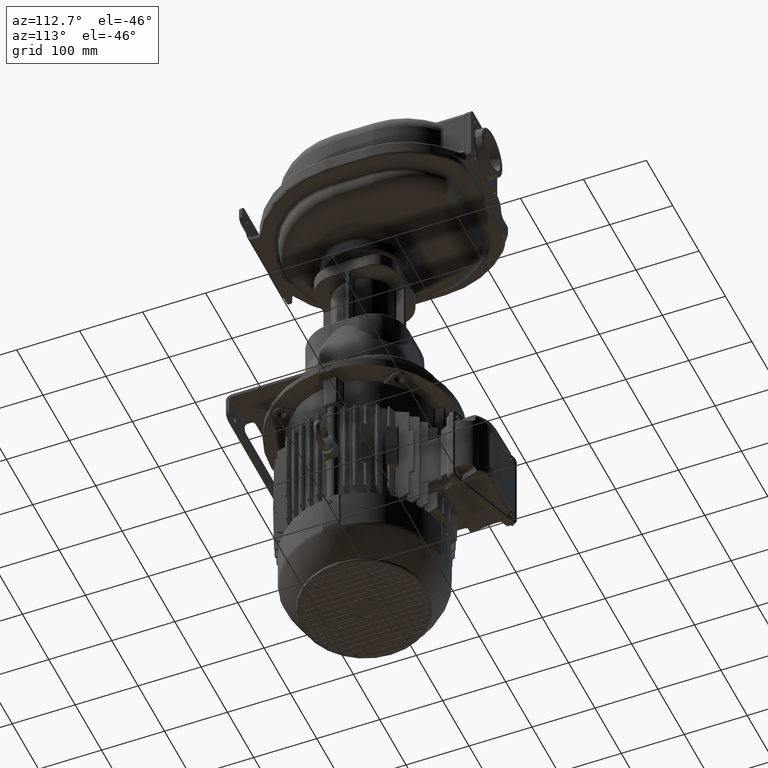
[diagram: clean part render]
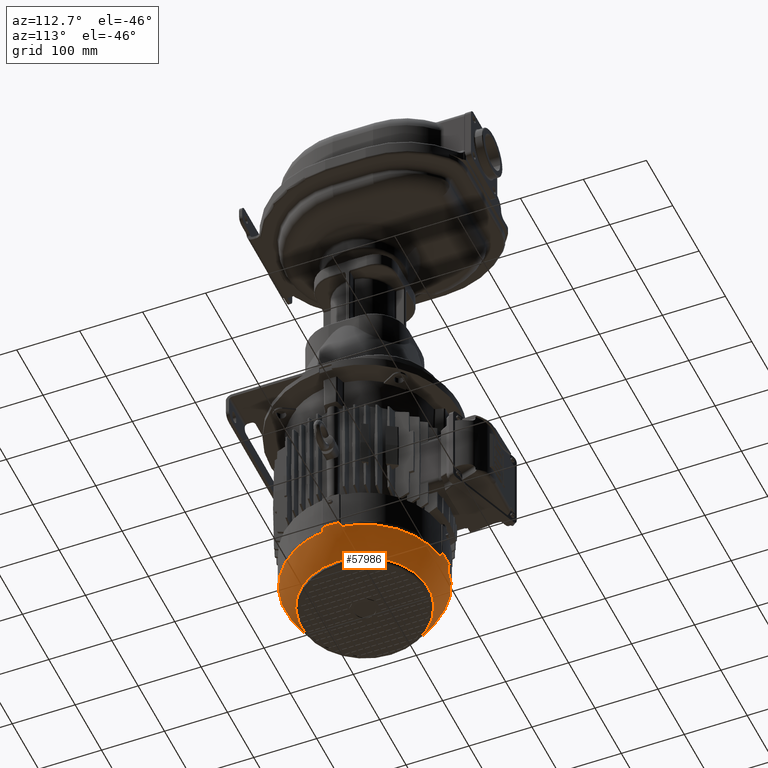
[diagram: same view with one face highlighted and labeled with its STEP entity id]
A machine part, auxiliary view. The second image highlights one B-rep face of the part: STEP entity #57986.
In plain terms, the highlighted spherical surface has radius 134.5 mm.
Its self-contained STEP definition (entity closure, byte-faithful):
#8047=CARTESIAN_POINT('',(-1.282834132325E2,1.468267666692E2,
-7.524111169065E2));
#8048=CARTESIAN_POINT('',(-1.282002467554E2,1.468032779781E2,
-7.526822287057E2));
#8049=CARTESIAN_POINT('',(-1.281156932223E2,1.467736879886E2,
-7.529527179535E2));
#8050=CARTESIAN_POINT('',(-1.280296044654E2,1.467363660330E2,
-7.532224832490E2));
#8062=CARTESIAN_POINT('',(-1.280296044654E2,1.467363660330E2,
-7.532224832490E2));
#8064=CARTESIAN_POINT('',(1.488929890107E1,3.430784874219E1,-7.596978132399E2));
#8065=CARTESIAN_POINT('',(1.475796735169E1,3.414367218423E1,-7.592872372190E2));
#8066=CARTESIAN_POINT('',(1.451428960194E1,3.383795419351E1,-7.585083626276E2));
#8067=CARTESIAN_POINT('',(1.420753603204E1,3.344590093285E1,-7.574764143306E2));
#8068=CARTESIAN_POINT('',(1.395433302649E1,3.310838468514E1,-7.565597509912E2));
#8069=CARTESIAN_POINT('',(1.374995806908E1,3.282021040087E1,-7.557538500398E2));
#8070=CARTESIAN_POINT('',(1.358630177904E1,3.257162973163E1,-7.550394341202E2));
#8071=CARTESIAN_POINT('',(1.345382030648E1,3.235117006413E1,-7.543892773766E2));
#8072=CARTESIAN_POINT('',(1.334645929561E1,3.215149202508E1,-7.537855855491E2));
#8073=CARTESIAN_POINT('',(1.328900445610E1,3.202891642737E1,-7.534058626654E2));
#8074=CARTESIAN_POINT('',(1.326363396699E1,3.197039553464E1,-7.532224832490E2));
#8076=CARTESIAN_POINT('',(-2.912393634391E-14,1.6E2,-7.596978132152E2));
#8077=DIRECTION('',(0.E0,0.E0,-1.E0));
#8078=DIRECTION('',(9.930567840818E-1,-1.176359791440E-1,0.E0));
#8079=AXIS2_PLACEMENT_3D('',#8076,#8077,#8078);
#8081=CARTESIAN_POINT('',(1.280296044654E2,1.467363660330E2,-7.532224832490E2));
#8082=CARTESIAN_POINT('',(1.279813187382E2,1.467154327826E2,-7.533737900399E2));
#8083=CARTESIAN_POINT('',(1.278801106687E2,1.466686185051E2,-7.536879521160E2));
#8084=CARTESIAN_POINT('',(1.277151915065E2,1.465827020448E2,-7.541895862922E2));
#8085=CARTESIAN_POINT('',(1.275327514921E2,1.464775507930E2,-7.547329884133E2));
#8086=CARTESIAN_POINT('',(1.273269676717E2,1.463481361164E2,-7.553325302622E2));
#8087=CARTESIAN_POINT('',(1.270895303860E2,1.461871273412E2,-7.560081109741E2));
#8088=CARTESIAN_POINT('',(1.268139615596E2,1.459881912629E2,-7.567724172240E2));
#8089=CARTESIAN_POINT('',(1.264955735249E2,1.457470905978E2,-7.576317792437E2));
#8090=CARTESIAN_POINT('',(1.261281700094E2,1.454586700014E2,-7.585951109436E2));
#8091=CARTESIAN_POINT('',(1.258441489627E2,1.452322768213E2,-7.593176899323E2));
#8092=CARTESIAN_POINT('',(1.256921512578E2,1.451107010989E2,-7.596978132399E2));
#8094=CARTESIAN_POINT('',(-2.823160288411E-14,1.6E2,-7.524111169065E2));
#8095=DIRECTION('',(0.E0,0.E0,-1.E0));
#8096=DIRECTION('',(9.947688696105E-1,1.021513389720E-1,0.E0));
#8097=AXIS2_PLACEMENT_3D('',#8094,#8095,#8096);
#8099=CARTESIAN_POINT('',(1.256921512578E2,1.748892989011E2,-7.596978132399E2));
#8100=CARTESIAN_POINT('',(1.258441489608E2,1.747677231801E2,-7.593176899370E2));
#8101=CARTESIAN_POINT('',(1.261281700108E2,1.745413299976E2,-7.585951109395E2));
#8102=CARTESIAN_POINT('',(1.264955735112E2,1.742529094125E2,-7.576317792810E2));
#8103=CARTESIAN_POINT('',(1.268139616318E2,1.740118086822E2,-7.567724170290E2));
#8104=CARTESIAN_POINT('',(1.270895305736E2,1.738128725246E2,-7.560081104511E2));
#8105=CARTESIAN_POINT('',(1.273269679927E2,1.736518636723E2,-7.553325293393E2));
#8106=CARTESIAN_POINT('',(1.275327517427E2,1.735224490569E2,-7.547329876729E2));
#8107=CARTESIAN_POINT('',(1.277151916597E2,1.734172978721E2,-7.541895858293E2));
#8108=CARTESIAN_POINT('',(1.278801107320E2,1.733313814633E2,-7.536879519209E2));
#8109=CARTESIAN_POINT('',(1.279813187573E2,1.732845672093E2,-7.533737899799E2));
#8110=CARTESIAN_POINT('',(1.280296044654E2,1.732636339670E2,-7.532224832490E2));
#8112=CARTESIAN_POINT('',(-2.912393634391E-14,1.6E2,-7.596978132152E2));
#8113=DIRECTION('',(0.E0,0.E0,-1.E0));
#8114=DIRECTION('',(1.176359791440E-1,9.930567840818E-1,0.E0));
#8115=AXIS2_PLACEMENT_3D('',#8112,#8113,#8114);
#8117=CARTESIAN_POINT('',(1.326363396699E1,2.880296044654E2,-7.532224832490E2));
#8118=CARTESIAN_POINT('',(1.328900445110E1,2.879710835835E2,-7.534058626313E2));
#8119=CARTESIAN_POINT('',(1.334645927764E1,2.878485080152E2,-7.537855854249E2));
#8120=CARTESIAN_POINT('',(1.345382027074E1,2.876488300020E2,-7.543892771771E2));
#8121=CARTESIAN_POINT('',(1.358630165557E1,2.874283704681E2,-7.550394335357E2));
#8122=CARTESIAN_POINT('',(1.374995789374E1,2.871797898532E2,-7.557538493214E2));
#8123=CARTESIAN_POINT('',(1.395433292233E1,2.868916154548E2,-7.565597506087E2));
#8124=CARTESIAN_POINT('',(1.420753600259E1,2.865540991033E2,-7.574764142382E2));
#8125=CARTESIAN_POINT('',(1.451428969286E1,2.861620456923E2,-7.585083629244E2));
#8126=CARTESIAN_POINT('',(1.475796739454E1,2.858563277598E2,-7.592872373595E2));
#8127=CARTESIAN_POINT('',(1.488929890107E1,2.856921512578E2,-7.596978132399E2));
#8129=CARTESIAN_POINT('',(-2.823160288411E-14,1.6E2,-7.524111169065E2));
#8130=DIRECTION('',(0.E0,0.E0,1.E0));
#8131=DIRECTION('',(1.021513389720E-1,9.947688696105E-1,0.E0));
#8132=AXIS2_PLACEMENT_3D('',#8129,#8130,#8131);
#8134=CARTESIAN_POINT('',(-1.488929890107E1,2.856921512578E2,
-7.596978132399E2));
#8135=CARTESIAN_POINT('',(-1.475796735151E1,2.858563278159E2,
-7.592872372187E2));
#8136=CARTESIAN_POINT('',(-1.451428960151E1,2.861620458068E2,
-7.585083626270E2));
#8137=CARTESIAN_POINT('',(-1.420753603168E1,2.865540990675E2,
-7.574764143297E2));
#8138=CARTESIAN_POINT('',(-1.395433302624E1,2.868916153152E2,
-7.565597509902E2));
#8139=CARTESIAN_POINT('',(-1.374995806884E1,2.871797895995E2,
-7.557538500386E2));
#8140=CARTESIAN_POINT('',(-1.358630177878E1,2.874283702688E2,
-7.550394341188E2));
#8141=CARTESIAN_POINT('',(-1.345382030629E1,2.876488299362E2,
-7.543892773755E2));
#8142=CARTESIAN_POINT('',(-1.334645929552E1,2.878485079751E2,
-7.537855855485E2));
#8143=CARTESIAN_POINT('',(-1.328900445607E1,2.879710835727E2,
-7.534058626652E2));
#8144=CARTESIAN_POINT('',(-1.326363396699E1,2.880296044654E2,
-7.532224832490E2));
#8146=CARTESIAN_POINT('',(-2.912393634391E-14,1.6E2,-7.596978132152E2));
#8147=DIRECTION('',(0.E0,0.E0,-1.E0));
#8148=DIRECTION('',(-9.930567840818E-1,1.176359791440E-1,0.E0));
#8149=AXIS2_PLACEMENT_3D('',#8146,#8147,#8148);
#8151=CARTESIAN_POINT('',(-1.280296044654E2,1.732636339670E2,
-7.532224832490E2));
#8152=CARTESIAN_POINT('',(-1.279813187382E2,1.732845672174E2,
-7.533737900398E2));
#8153=CARTESIAN_POINT('',(-1.278801106687E2,1.733313814949E2,
-7.536879521160E2));
#8154=CARTESIAN_POINT('',(-1.277151915065E2,1.734172979552E2,
-7.541895862922E2));
#8155=CARTESIAN_POINT('',(-1.275327514921E2,1.735224492070E2,
-7.547329884133E2));
#8156=CARTESIAN_POINT('',(-1.273269676717E2,1.736518638836E2,
-7.553325302622E2));
#8157=CARTESIAN_POINT('',(-1.270895303860E2,1.738128726588E2,
-7.560081109740E2));
#8158=CARTESIAN_POINT('',(-1.268139615596E2,1.740118087371E2,
-7.567724172240E2));
#8159=CARTESIAN_POINT('',(-1.264955735249E2,1.742529094022E2,
-7.576317792436E2));
#8160=CARTESIAN_POINT('',(-1.261281700094E2,1.745413299985E2,
-7.585951109436E2));
#8161=CARTESIAN_POINT('',(-1.258441489627E2,1.747677231787E2,
-7.593176899323E2));
#8162=CARTESIAN_POINT('',(-1.256921512578E2,1.748892989011E2,
-7.596978132399E2));
#8164=CARTESIAN_POINT('',(-2.823160288411E-14,1.6E2,-7.524111169065E2));
#8165=DIRECTION('',(0.E0,0.E0,-1.E0));
#8166=DIRECTION('',(-9.947688696105E-1,-1.021513389720E-1,0.E0));
#8167=AXIS2_PLACEMENT_3D('',#8164,#8165,#8166);
#8169=CARTESIAN_POINT('',(-1.256921512578E2,1.451107010989E2,
-7.596978132399E2));
#8170=CARTESIAN_POINT('',(-1.258441489609E2,1.452322768200E2,
-7.593176899369E2));
#8171=CARTESIAN_POINT('',(-1.261281700110E2,1.454586700026E2,
-7.585951109392E2));
#8172=CARTESIAN_POINT('',(-1.264955735113E2,1.457470905877E2,
-7.576317792806E2));
#8173=CARTESIAN_POINT('',(-1.268139616320E2,1.459881913179E2,
-7.567724170286E2));
#8174=CARTESIAN_POINT('',(-1.270895305737E2,1.461871274755E2,
-7.560081104507E2));
#8175=CARTESIAN_POINT('',(-1.273269679929E2,1.463481363278E2,
-7.553325293388E2));
#8176=CARTESIAN_POINT('',(-1.275327517429E2,1.464775509432E2,
-7.547329876723E2));
#8177=CARTESIAN_POINT('',(-1.277151916599E2,1.465827021280E2,
-7.541895858288E2));
#8178=CARTESIAN_POINT('',(-1.278801107320E2,1.466686185367E2,
-7.536879519206E2));
#8179=CARTESIAN_POINT('',(-1.279813187573E2,1.467154327907E2,
-7.533737899798E2));
#8180=CARTESIAN_POINT('',(-1.280296044654E2,1.467363660330E2,
-7.532224832490E2));
#8182=CARTESIAN_POINT('',(-2.912393634391E-14,1.6E2,-7.596978132152E2));
#8183=DIRECTION('',(0.E0,0.E0,-1.E0));
#8184=DIRECTION('',(-1.176359791440E-1,-9.930567840818E-1,0.E0));
#8185=AXIS2_PLACEMENT_3D('',#8182,#8183,#8184);
#8187=CARTESIAN_POINT('',(-1.326363396699E1,3.197039553464E1,
-7.532224832490E2));
#8188=CARTESIAN_POINT('',(-1.328900445111E1,3.202891641648E1,
-7.534058626314E2));
#8189=CARTESIAN_POINT('',(-1.334645927768E1,3.215149198492E1,
-7.537855854252E2));
#8190=CARTESIAN_POINT('',(-1.345382027081E1,3.235116999815E1,
-7.543892771776E2));
#8191=CARTESIAN_POINT('',(-1.358630165567E1,3.257162953212E1,
-7.550394335362E2));
#8192=CARTESIAN_POINT('',(-1.374995789384E1,3.282021014697E1,
-7.557538493218E2));
#8193=CARTESIAN_POINT('',(-1.395433292243E1,3.310838454529E1,
-7.565597506091E2));
#8194=CARTESIAN_POINT('',(-1.420753600272E1,3.344590089681E1,
-7.574764142385E2));
#8195=CARTESIAN_POINT('',(-1.451428969301E1,3.383795430776E1,
-7.585083629246E2));
#8196=CARTESIAN_POINT('',(-1.475796739460E1,3.414367224023E1,
-7.592872373596E2));
#8197=CARTESIAN_POINT('',(-1.488929890107E1,3.430784874219E1,
-7.596978132399E2));
#8199=CARTESIAN_POINT('',(-3.439562241373E-14,1.6E2,-8.027458184241E2));
#8200=DIRECTION('',(0.E0,0.E0,-1.E0));
#8201=DIRECTION('',(-1.E0,0.E0,0.E0));
#8202=AXIS2_PLACEMENT_3D('',#8199,#8200,#8201);
#8204=CARTESIAN_POINT('',(-3.439562241373E-14,1.6E2,-8.027458184241E2));
#8205=DIRECTION('',(0.E0,0.E0,-1.E0));
#8206=DIRECTION('',(1.E0,0.E0,0.E0));
#8207=AXIS2_PLACEMENT_3D('',#8204,#8205,#8206);
#8209=CARTESIAN_POINT('',(-2.823160288411E-14,1.6E2,-7.524111169065E2));
#8210=DIRECTION('',(0.E0,0.E0,-1.E0));
#8211=DIRECTION('',(1.021513389720E-1,-9.947688696105E-1,0.E0));
#8212=AXIS2_PLACEMENT_3D('',#8209,#8210,#8211);
#8241=CARTESIAN_POINT('',(1.317323333080E1,3.171658676751E1,-7.524111169065E2));
#8536=CARTESIAN_POINT('',(1.317323333080E1,3.171658676751E1,-7.524111169065E2));
#8537=CARTESIAN_POINT('',(1.319672202193E1,3.179975324463E1,-7.526822287057E2));
#8538=CARTESIAN_POINT('',(1.322631201143E1,3.188430677767E1,-7.529527179535E2));
#8539=CARTESIAN_POINT('',(1.326363396699E1,3.197039553464E1,-7.532224832490E2));
#8551=CARTESIAN_POINT('',(1.326363396699E1,3.197039553464E1,-7.532224832490E2));
#8577=CARTESIAN_POINT('',(1.256921512578E2,1.451107010989E2,-7.596978132399E2));
#8595=CARTESIAN_POINT('',(1.488929890107E1,3.430784874219E1,-7.596978132399E2));
#8748=CARTESIAN_POINT('',(1.282834132325E2,1.731732333308E2,-7.524111169065E2));
#8749=CARTESIAN_POINT('',(1.282002467554E2,1.731967220219E2,-7.526822287057E2));
#8750=CARTESIAN_POINT('',(1.281156932223E2,1.732263120114E2,-7.529527179535E2));
#8751=CARTESIAN_POINT('',(1.280296044654E2,1.732636339670E2,-7.532224832490E2));
#8807=CARTESIAN_POINT('',(1.256921512578E2,1.748892989011E2,-7.596978132399E2));
#8836=CARTESIAN_POINT('',(1.317323333080E1,2.882834132325E2,-7.524111169065E2));
#9002=CARTESIAN_POINT('',(-1.317323333080E1,2.882834132325E2,
-7.524111169065E2));
#9003=CARTESIAN_POINT('',(-1.319672202193E1,2.882002467554E2,
-7.526822287057E2));
#9004=CARTESIAN_POINT('',(-1.322631201143E1,2.881156932223E2,
-7.529527179535E2));
#9005=CARTESIAN_POINT('',(-1.326363396699E1,2.880296044654E2,
-7.532224832490E2));
#9011=CARTESIAN_POINT('',(-1.317323333080E1,2.882834132325E2,
-7.524111169065E2));
#9017=CARTESIAN_POINT('',(-1.326363396699E1,2.880296044654E2,
-7.532224832490E2));
#9031=CARTESIAN_POINT('',(-1.488929890107E1,2.856921512578E2,
-7.596978132399E2));
#9053=CARTESIAN_POINT('',(-1.256921512578E2,1.748892989011E2,
-7.596978132399E2));
#9164=CARTESIAN_POINT('',(-1.282834132325E2,1.468267666692E2,
-7.524111169065E2));
#9182=CARTESIAN_POINT('',(-1.282834132325E2,1.731732333308E2,
-7.524111169065E2));
#9192=CARTESIAN_POINT('',(-1.280296044654E2,1.732636339670E2,
-7.532224832490E2));
#9193=CARTESIAN_POINT('',(-1.281156932223E2,1.732263120114E2,
-7.529527179535E2));
#9194=CARTESIAN_POINT('',(-1.282002467554E2,1.731967220219E2,
-7.526822287057E2));
#9195=CARTESIAN_POINT('',(-1.282834132325E2,1.731732333308E2,
-7.524111169065E2));
#9201=CARTESIAN_POINT('',(-1.280296044654E2,1.732636339670E2,
-7.532224832490E2));
#9692=CARTESIAN_POINT('',(1.326363396699E1,2.880296044654E2,-7.532224832490E2));
#9693=CARTESIAN_POINT('',(1.322631201143E1,2.881156932223E2,-7.529527179535E2));
#9694=CARTESIAN_POINT('',(1.319672202193E1,2.882002467554E2,-7.526822287057E2));
#9695=CARTESIAN_POINT('',(1.317323333080E1,2.882834132325E2,-7.524111169065E2));
#9701=CARTESIAN_POINT('',(1.326363396699E1,2.880296044654E2,-7.532224832490E2));
#9708=CARTESIAN_POINT('',(1.488929890107E1,2.856921512578E2,-7.596978132399E2));
#9747=CARTESIAN_POINT('',(1.282834132325E2,1.731732333308E2,-7.524111169065E2));
#9765=CARTESIAN_POINT('',(1.282834132325E2,1.468267666692E2,-7.524111169065E2));
#10229=CARTESIAN_POINT('',(1.280296044654E2,1.467363660330E2,
-7.532224832490E2));
#10230=CARTESIAN_POINT('',(1.281156932223E2,1.467736879886E2,
-7.529527179535E2));
#10231=CARTESIAN_POINT('',(1.282002467554E2,1.468032779781E2,
-7.526822287057E2));
#10232=CARTESIAN_POINT('',(1.282834132325E2,1.468267666692E2,
-7.524111169065E2));
#10600=CARTESIAN_POINT('',(-1.326363396699E1,3.197039553464E1,
-7.532224832490E2));
#10601=CARTESIAN_POINT('',(-1.322631201143E1,3.188430677767E1,
-7.529527179535E2));
#10602=CARTESIAN_POINT('',(-1.319672202193E1,3.179975324463E1,
-7.526822287057E2));
#10603=CARTESIAN_POINT('',(-1.317323333080E1,3.171658676751E1,
-7.524111169065E2));
#10635=CARTESIAN_POINT('',(-1.488929890107E1,3.430784874219E1,
-7.596978132399E2));
#10653=CARTESIAN_POINT('',(-1.256921512578E2,1.451107010989E2,
-7.596978132399E2));
#43866=VERTEX_POINT('',#10600);
#43867=VERTEX_POINT('',#10603);
#45144=VERTEX_POINT('',#9017);
#45149=VERTEX_POINT('',#9031);
#45481=VERTEX_POINT('',#9011);
#45805=VERTEX_POINT('',#9708);
#45814=VERTEX_POINT('',#8836);
#45819=VERTEX_POINT('',#9701);
#46353=VERTEX_POINT('',#10635);
#46355=VERTEX_POINT('',#9182);
#46357=VERTEX_POINT('',#9164);
#46359=VERTEX_POINT('',#8241);
#46360=VERTEX_POINT('',#9747);
#46366=VERTEX_POINT('',#8595);
#46375=VERTEX_POINT('',#9765);
#46376=VERTEX_POINT('',#8807);
#46378=VERTEX_POINT('',#9201);
#46379=VERTEX_POINT('',#8577);
#46384=VERTEX_POINT('',#9053);
#46389=VERTEX_POINT('',#10653);
#46435=VERTEX_POINT('',#8551);
#46454=VERTEX_POINT('',#8062);
#46534=CARTESIAN_POINT('',(1.012418181818E2,1.6E2,-8.027458184241E2));
#46536=VERTEX_POINT('',#46534);
#46547=VERTEX_POINT('',#8081);
#46548=VERTEX_POINT('',#8110);
#46574=CARTESIAN_POINT('',(-1.012418181818E2,1.6E2,-8.027458184241E2));
#46575=VERTEX_POINT('',#46574);
#57927=CARTESIAN_POINT('',(-2.355225747514E-14,1.6E2,-7.142001E2));
#57928=DIRECTION('',(1.E0,0.E0,0.E0));
#57929=DIRECTION('',(0.E0,1.E0,0.E0));
#57930=AXIS2_PLACEMENT_3D('',#57927,#57928,#57929);
#57931=SPHERICAL_SURFACE('',#57930,1.345E2);
#57933=ORIENTED_EDGE('',*,*,#57932,.F.);
#57935=ORIENTED_EDGE('',*,*,#57934,.T.);
#57937=ORIENTED_EDGE('',*,*,#57936,.F.);
#57939=ORIENTED_EDGE('',*,*,#57938,.F.);
#57941=ORIENTED_EDGE('',*,*,#57940,.F.);
#57943=ORIENTED_EDGE('',*,*,#57942,.T.);
#57945=ORIENTED_EDGE('',*,*,#57944,.F.);
#57947=ORIENTED_EDGE('',*,*,#57946,.T.);
#57949=ORIENTED_EDGE('',*,*,#57948,.F.);
#57951=ORIENTED_EDGE('',*,*,#57950,.F.);
#57953=ORIENTED_EDGE('',*,*,#57952,.F.);
#57955=ORIENTED_EDGE('',*,*,#57954,.T.);
#57957=ORIENTED_EDGE('',*,*,#57956,.T.);
#57959=ORIENTED_EDGE('',*,*,#57958,.T.);
#57961=ORIENTED_EDGE('',*,*,#57960,.F.);
#57963=ORIENTED_EDGE('',*,*,#57962,.F.);
#57965=ORIENTED_EDGE('',*,*,#57964,.F.);
#57967=ORIENTED_EDGE('',*,*,#57966,.T.);
#57969=ORIENTED_EDGE('',*,*,#57968,.F.);
#57970=ORIENTED_EDGE('',*,*,#57885,.T.);
#57971=ORIENTED_EDGE('',*,*,#57919,.F.);
#57973=ORIENTED_EDGE('',*,*,#57972,.F.);
#57975=ORIENTED_EDGE('',*,*,#57974,.F.);
#57977=ORIENTED_EDGE('',*,*,#57976,.T.);
#57978=EDGE_LOOP('',(#57933,#57935,#57937,#57939,#57941,#57943,#57945,#57947,
#57949,#57951,#57953,#57955,#57957,#57959,#57961,#57963,#57965,#57967,#57969,
#57970,#57971,#57973,#57975,#57977));
#57979=FACE_OUTER_BOUND('',#57978,.F.);
#57981=ORIENTED_EDGE('',*,*,#57980,.T.);
#57983=ORIENTED_EDGE('',*,*,#57982,.T.);
#57984=EDGE_LOOP('',(#57981,#57983));
#57985=FACE_BOUND('',#57984,.F.);
#57986=ADVANCED_FACE('',(#57979,#57985),#57931,.T.);
#8051=B_SPLINE_CURVE_WITH_KNOTS('',3,(#8047,#8048,#8049,#8050),.UNSPECIFIED.,
.F.,.F.,(4,4),(0.E0,1.E0),.UNSPECIFIED.);
#8075=B_SPLINE_CURVE_WITH_KNOTS('',3,(#8064,#8065,#8066,#8067,#8068,#8069,#8070,
#8071,#8072,#8073,#8074),.UNSPECIFIED.,.F.,.F.,(4,1,1,1,1,1,1,1,4),(0.E0,
1.25E-1,2.5E-1,3.75E-1,5.E-1,6.25E-1,7.5E-1,8.75E-1,1.E0),.UNSPECIFIED.);
#8080=CIRCLE('',#8079,1.265709606987E2);
#8093=B_SPLINE_CURVE_WITH_KNOTS('',3,(#8081,#8082,#8083,#8084,#8085,#8086,#8087,
#8088,#8089,#8090,#8091,#8092),.UNSPECIFIED.,.F.,.F.,(4,1,1,1,1,1,1,1,1,4),
(0.E0,1.111111111111E-1,2.222222222222E-1,3.333333333333E-1,4.444444444444E-1,
5.555555555556E-1,6.666666666667E-1,7.777777777778E-1,8.888888888889E-1,1.E0),
.UNSPECIFIED.);
#8098=CIRCLE('',#8097,1.289580093944E2);
#8111=B_SPLINE_CURVE_WITH_KNOTS('',3,(#8099,#8100,#8101,#8102,#8103,#8104,#8105,
#8106,#8107,#8108,#8109,#8110),.UNSPECIFIED.,.F.,.F.,(4,1,1,1,1,1,1,1,1,4),
(0.E0,1.111111111111E-1,2.222222222222E-1,3.333333333333E-1,4.444444444444E-1,
5.555555555556E-1,6.666666666667E-1,7.777777777778E-1,8.888888888889E-1,1.E0),
.UNSPECIFIED.);
#8116=CIRCLE('',#8115,1.265709606987E2);
#8128=B_SPLINE_CURVE_WITH_KNOTS('',3,(#8117,#8118,#8119,#8120,#8121,#8122,#8123,
#8124,#8125,#8126,#8127),.UNSPECIFIED.,.F.,.F.,(4,1,1,1,1,1,1,1,4),(0.E0,
1.25E-1,2.5E-1,3.75E-1,5.E-1,6.25E-1,7.5E-1,8.75E-1,1.E0),.UNSPECIFIED.);
#8133=CIRCLE('',#8132,1.289580093944E2);
#8145=B_SPLINE_CURVE_WITH_KNOTS('',3,(#8134,#8135,#8136,#8137,#8138,#8139,#8140,
#8141,#8142,#8143,#8144),.UNSPECIFIED.,.F.,.F.,(4,1,1,1,1,1,1,1,4),(0.E0,
1.25E-1,2.5E-1,3.75E-1,5.E-1,6.25E-1,7.5E-1,8.75E-1,1.E0),.UNSPECIFIED.);
#8150=CIRCLE('',#8149,1.265709606987E2);
#8163=B_SPLINE_CURVE_WITH_KNOTS('',3,(#8151,#8152,#8153,#8154,#8155,#8156,#8157,
#8158,#8159,#8160,#8161,#8162),.UNSPECIFIED.,.F.,.F.,(4,1,1,1,1,1,1,1,1,4),
(0.E0,1.111111111111E-1,2.222222222222E-1,3.333333333333E-1,4.444444444444E-1,
5.555555555556E-1,6.666666666667E-1,7.777777777778E-1,8.888888888889E-1,1.E0),
.UNSPECIFIED.);
#8168=CIRCLE('',#8167,1.289580093944E2);
#8181=B_SPLINE_CURVE_WITH_KNOTS('',3,(#8169,#8170,#8171,#8172,#8173,#8174,#8175,
#8176,#8177,#8178,#8179,#8180),.UNSPECIFIED.,.F.,.F.,(4,1,1,1,1,1,1,1,1,4),
(0.E0,1.111111111111E-1,2.222222222222E-1,3.333333333333E-1,4.444444444444E-1,
5.555555555556E-1,6.666666666667E-1,7.777777777778E-1,8.888888888889E-1,1.E0),
.UNSPECIFIED.);
#8186=CIRCLE('',#8185,1.265709606987E2);
#8198=B_SPLINE_CURVE_WITH_KNOTS('',3,(#8187,#8188,#8189,#8190,#8191,#8192,#8193,
#8194,#8195,#8196,#8197),.UNSPECIFIED.,.F.,.F.,(4,1,1,1,1,1,1,1,4),(0.E0,
1.25E-1,2.5E-1,3.75E-1,5.E-1,6.25E-1,7.5E-1,8.75E-1,1.E0),.UNSPECIFIED.);
#8203=CIRCLE('',#8202,1.012418181818E2);
#8208=CIRCLE('',#8207,1.012418181818E2);
#8213=CIRCLE('',#8212,1.289580093944E2);
#8540=B_SPLINE_CURVE_WITH_KNOTS('',3,(#8536,#8537,#8538,#8539),.UNSPECIFIED.,
.F.,.F.,(4,4),(0.E0,1.E0),.UNSPECIFIED.);
#8752=B_SPLINE_CURVE_WITH_KNOTS('',3,(#8748,#8749,#8750,#8751),.UNSPECIFIED.,
.F.,.F.,(4,4),(0.E0,1.E0),.UNSPECIFIED.);
#9006=B_SPLINE_CURVE_WITH_KNOTS('',3,(#9002,#9003,#9004,#9005),.UNSPECIFIED.,
.F.,.F.,(4,4),(0.E0,1.E0),.UNSPECIFIED.);
#9196=B_SPLINE_CURVE_WITH_KNOTS('',3,(#9192,#9193,#9194,#9195),.UNSPECIFIED.,
.F.,.F.,(4,4),(0.E0,1.E0),.UNSPECIFIED.);
#9696=B_SPLINE_CURVE_WITH_KNOTS('',3,(#9692,#9693,#9694,#9695),.UNSPECIFIED.,
.F.,.F.,(4,4),(0.E0,1.E0),.UNSPECIFIED.);
#10233=B_SPLINE_CURVE_WITH_KNOTS('',3,(#10229,#10230,#10231,#10232),
.UNSPECIFIED.,.F.,.F.,(4,4),(0.E0,1.E0),.UNSPECIFIED.);
#10604=B_SPLINE_CURVE_WITH_KNOTS('',3,(#10600,#10601,#10602,#10603),
.UNSPECIFIED.,.F.,.F.,(4,4),(0.E0,1.E0),.UNSPECIFIED.);
#57885=EDGE_CURVE('',#46357,#46454,#8051,.T.);
#57919=EDGE_CURVE('',#46389,#46454,#8181,.T.);
#57932=EDGE_CURVE('',#46359,#43867,#8213,.T.);
#57934=EDGE_CURVE('',#46359,#46435,#8540,.T.);
#57936=EDGE_CURVE('',#46366,#46435,#8075,.T.);
#57938=EDGE_CURVE('',#46379,#46366,#8080,.T.);
#57940=EDGE_CURVE('',#46547,#46379,#8093,.T.);
#57942=EDGE_CURVE('',#46547,#46375,#10233,.T.);
#57944=EDGE_CURVE('',#46360,#46375,#8098,.T.);
#57946=EDGE_CURVE('',#46360,#46548,#8752,.T.);
#57948=EDGE_CURVE('',#46376,#46548,#8111,.T.);
#57950=EDGE_CURVE('',#45805,#46376,#8116,.T.);
#57952=EDGE_CURVE('',#45819,#45805,#8128,.T.);
#57954=EDGE_CURVE('',#45819,#45814,#9696,.T.);
#57956=EDGE_CURVE('',#45814,#45481,#8133,.T.);
#57958=EDGE_CURVE('',#45481,#45144,#9006,.T.);
#57960=EDGE_CURVE('',#45149,#45144,#8145,.T.);
#57962=EDGE_CURVE('',#46384,#45149,#8150,.T.);
#57964=EDGE_CURVE('',#46378,#46384,#8163,.T.);
#57966=EDGE_CURVE('',#46378,#46355,#9196,.T.);
#57968=EDGE_CURVE('',#46357,#46355,#8168,.T.);
#57972=EDGE_CURVE('',#46353,#46389,#8186,.T.);
#57974=EDGE_CURVE('',#43866,#46353,#8198,.T.);
#57976=EDGE_CURVE('',#43866,#43867,#10604,.T.);
#57980=EDGE_CURVE('',#46575,#46536,#8203,.T.);
#57982=EDGE_CURVE('',#46536,#46575,#8208,.T.);